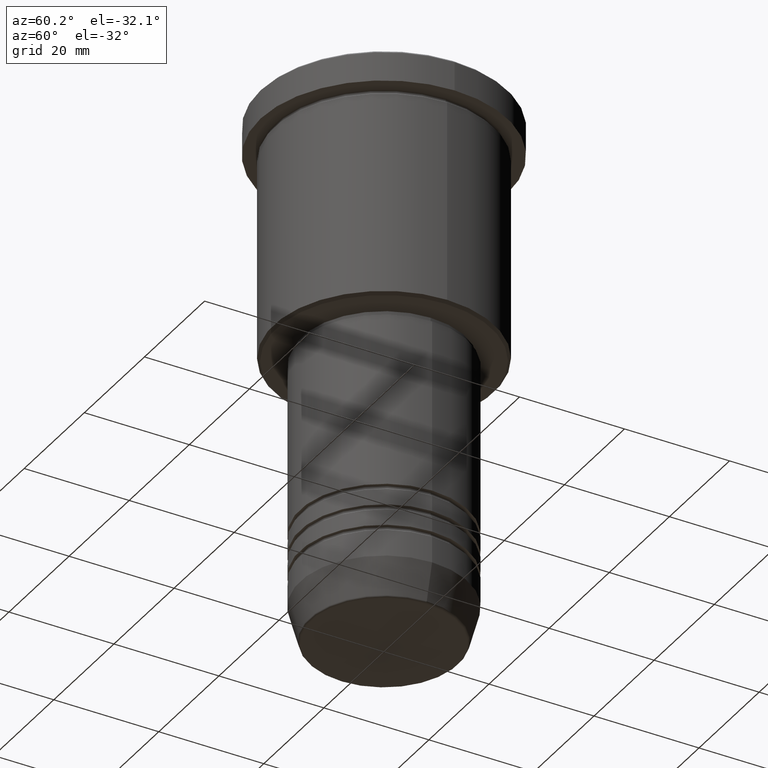
[diagram: clean part render]
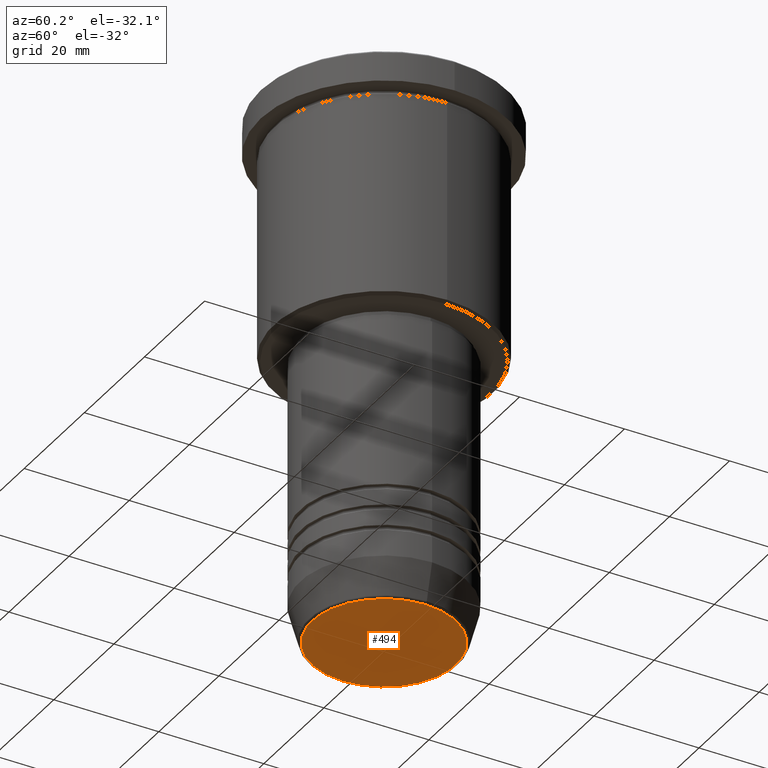
[diagram: same view with one face highlighted and labeled with its STEP entity id]
A machine part, auxiliary view. The second image highlights one B-rep face of the part: STEP entity #494.
In plain terms, the highlighted planar face has unit normal (0, -0, 1).
Its self-contained STEP definition (entity closure, byte-faithful):
#104 = VERTEX_POINT ( 'NONE', #537 ) ;
#188 = EDGE_LOOP ( 'NONE', ( #969, #482 ) ) ;
#268 = AXIS2_PLACEMENT_3D ( 'NONE', #388, #755, #296 ) ;
#296 = DIRECTION ( 'NONE',  ( 1.000000000000000000, 0.000000000000000000, 0.000000000000000000 ) ) ;
#384 = EDGE_CURVE ( 'NONE', #763, #104, #847, .T. ) ;
#388 = CARTESIAN_POINT ( 'NONE',  ( 0.000000000000000000, 0.000000000000000000, -101.0000000000000000 ) ) ;
#401 = DIRECTION ( 'NONE',  ( 1.000000000000000000, 0.000000000000000000, 0.000000000000000000 ) ) ;
#448 = AXIS2_PLACEMENT_3D ( 'NONE', #1075, #546, #1169 ) ;
#482 = ORIENTED_EDGE ( 'NONE', *, *, #384, .T. ) ;
#494 = ADVANCED_FACE ( 'NONE', ( #607 ), #700, .F. ) ;
#537 = CARTESIAN_POINT ( 'NONE',  ( 13.74069215899265473, 0.000000000000000000, -101.0000000000000000 ) ) ;
#546 = DIRECTION ( 'NONE',  ( 0.000000000000000000, 0.000000000000000000, -1.000000000000000000 ) ) ;
#607 = FACE_OUTER_BOUND ( 'NONE', #188, .T. ) ;
#670 = CIRCLE ( 'NONE', #448, 13.74069215899265473 ) ;
#700 = PLANE ( 'NONE',  #718 ) ;
#718 = AXIS2_PLACEMENT_3D ( 'NONE', #1060, #965, #401 ) ;
#755 = DIRECTION ( 'NONE',  ( 0.000000000000000000, 0.000000000000000000, -1.000000000000000000 ) ) ;
#763 = VERTEX_POINT ( 'NONE', #1012 ) ;
#824 = EDGE_CURVE ( 'NONE', #104, #763, #670, .T. ) ;
#847 = CIRCLE ( 'NONE', #268, 13.74069215899265473 ) ;
#965 = DIRECTION ( 'NONE',  ( 0.000000000000000000, -0.000000000000000000, 1.000000000000000000 ) ) ;
#969 = ORIENTED_EDGE ( 'NONE', *, *, #824, .T. ) ;
#1012 = CARTESIAN_POINT ( 'NONE',  ( -13.74069215899265473, 1.712322416342415591E-15, -101.0000000000000000 ) ) ;
#1060 = CARTESIAN_POINT ( 'NONE',  ( 0.000000000000000000, 0.000000000000000000, -101.0000000000000000 ) ) ;
#1075 = CARTESIAN_POINT ( 'NONE',  ( 0.000000000000000000, 0.000000000000000000, -101.0000000000000000 ) ) ;
#1169 = DIRECTION ( 'NONE',  ( 1.000000000000000000, 0.000000000000000000, 0.000000000000000000 ) ) ;